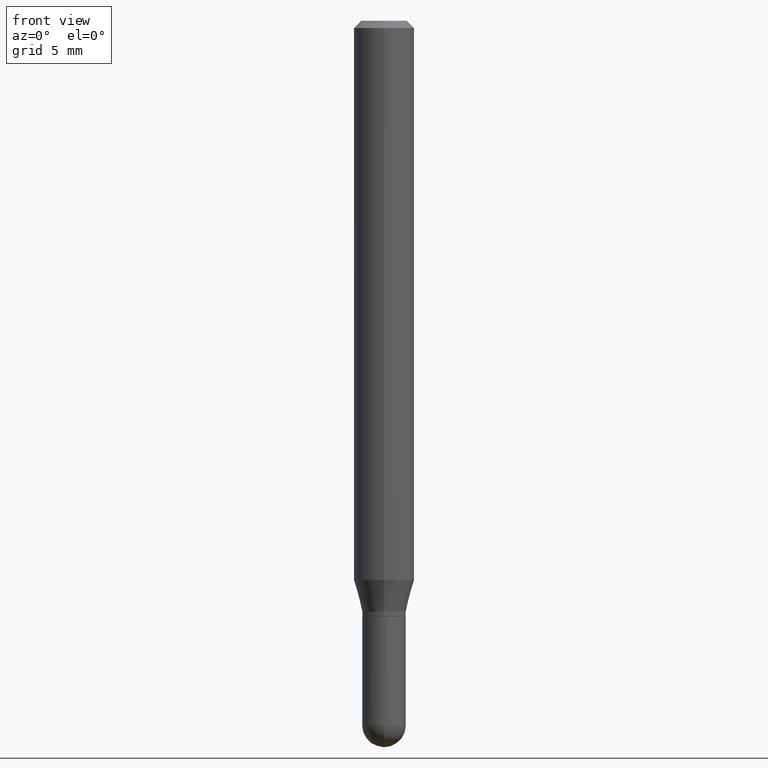
[diagram: clean part render]
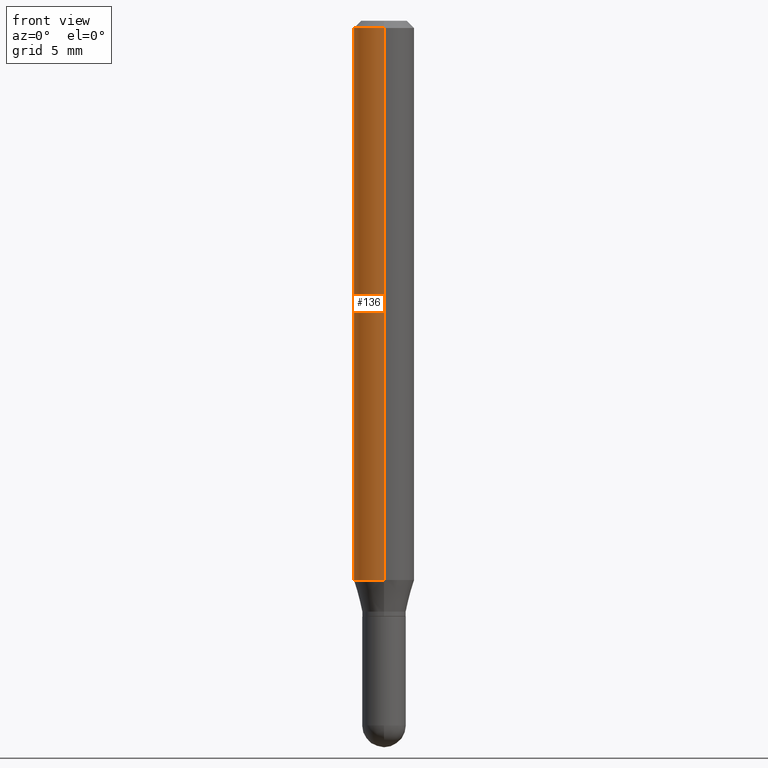
[diagram: same view with one face highlighted and labeled with its STEP entity id]
A machine part, front view. The second image highlights one B-rep face of the part: STEP entity #136.
In plain terms, the highlighted cylindrical surface (edge-blend (fillet) strip) has radius 1.5875 mm, axis along (-0, 0, 1).
Its self-contained STEP definition (entity closure, byte-faithful):
#1 = VERTEX_POINT ( 'NONE', #166 ) ;
#4 = DIRECTION ( 'NONE',  ( -2.445470756859343624E-29, 3.491478545366655797E-15, 1.000000000000000000 ) ) ;
#36 = EDGE_CURVE ( 'NONE', #167, #428, #420, .T. ) ;
#45 = DIRECTION ( 'NONE',  ( -6.982962677686265922E-15, -1.000000000000000000, 3.483106191921935554E-15 ) ) ;
#56 = DIRECTION ( 'NONE',  ( -2.445470756859343624E-29, 3.491478545366655797E-15, 1.000000000000000000 ) ) ;
#71 = CARTESIAN_POINT ( 'NONE',  ( 2.823758453890498929E-29, -4.031572257162534122E-15, -1.154689110867545443 ) ) ;
#83 = EDGE_CURVE ( 'NONE', #445, #167, #130, .T. ) ;
#103 = DIRECTION ( 'NONE',  ( -2.445470756859343624E-29, 3.491478545366656192E-15, 1.000000000000000000 ) ) ;
#123 = ORIENTED_EDGE ( 'NONE', *, *, #288, .T. ) ;
#128 = VECTOR ( 'NONE', #103, 39.37007874015748143 ) ;
#130 = LINE ( 'NONE', #287, #379 ) ;
#136 = ADVANCED_FACE ( 'NONE', ( #336 ), #245, .T. ) ;
#166 = CARTESIAN_POINT ( 'NONE',  ( -4.364351673553634183E-16, -0.06250000000000402456, -1.154689110867545221 ) ) ;
#167 = VERTEX_POINT ( 'NONE', #373 ) ;
#195 = AXIS2_PLACEMENT_3D ( 'NONE', #199, #4, #45 ) ;
#199 = CARTESIAN_POINT ( 'NONE',  ( 3.668206135289095817E-31, -5.237217818050098401E-17, -0.01500000000000032904 ) ) ;
#209 = AXIS2_PLACEMENT_3D ( 'NONE', #462, #56, #250 ) ;
#216 = AXIS2_PLACEMENT_3D ( 'NONE', #71, #220, #268 ) ;
#220 = DIRECTION ( 'NONE',  ( -2.445470756859343624E-29, 3.491478545366655797E-15, 1.000000000000000000 ) ) ;
#221 = ORIENTED_EDGE ( 'NONE', *, *, #337, .T. ) ;
#227 = LINE ( 'NONE', #387, #128 ) ;
#245 = CYLINDRICAL_SURFACE ( 'NONE', #209, 0.06250000000000000000 ) ;
#250 = DIRECTION ( 'NONE',  ( -6.982962677686265922E-15, -1.000000000000000000, 3.491478545366655797E-15 ) ) ;
#267 = ORIENTED_EDGE ( 'NONE', *, *, #36, .F. ) ;
#268 = DIRECTION ( 'NONE',  ( -6.982962677686265922E-15, -1.000000000000000000, 4.370956789862821150E-15 ) ) ;
#286 = ORIENTED_EDGE ( 'NONE', *, *, #83, .F. ) ;
#287 = CARTESIAN_POINT ( 'NONE',  ( 4.440892098500625669E-16, 0.06250000000000000000, -2.182174090854159873E-16 ) ) ;
#288 = EDGE_CURVE ( 'NONE', #445, #1, #449, .T. ) ;
#336 = FACE_OUTER_BOUND ( 'NONE', #357, .T. ) ;
#337 = EDGE_CURVE ( 'NONE', #1, #428, #227, .T. ) ;
#357 = EDGE_LOOP ( 'NONE', ( #286, #123, #221, #267 ) ) ;
#373 = CARTESIAN_POINT ( 'NONE',  ( 4.440892098500909166E-16, 0.06249999999999993755, -0.01500000000000054588 ) ) ;
#379 = VECTOR ( 'NONE', #415, 39.37007874015748143 ) ;
#387 = CARTESIAN_POINT ( 'NONE',  ( -4.364351673553916201E-16, -0.06250000000000000000, 2.182174090854159873E-16 ) ) ;
#415 = DIRECTION ( 'NONE',  ( -2.445470756859343624E-29, 3.491478545366656192E-15, 1.000000000000000000 ) ) ;
#420 = CIRCLE ( 'NONE', #195, 0.06250000000000000000 ) ;
#427 = CARTESIAN_POINT ( 'NONE',  ( 4.440892098500907193E-16, 0.06249999999999596156, -1.154689110867545665 ) ) ;
#428 = VERTEX_POINT ( 'NONE', #460 ) ;
#445 = VERTEX_POINT ( 'NONE', #427 ) ;
#449 = CIRCLE ( 'NONE', #216, 0.06250000000000000000 ) ;
#460 = CARTESIAN_POINT ( 'NONE',  ( -4.364351673553912750E-16, -0.06250000000000005551, -0.01500000000000011047 ) ) ;
#462 = CARTESIAN_POINT ( 'NONE',  ( 0.000000000000000000, 0.000000000000000000, 0.000000000000000000 ) ) ;